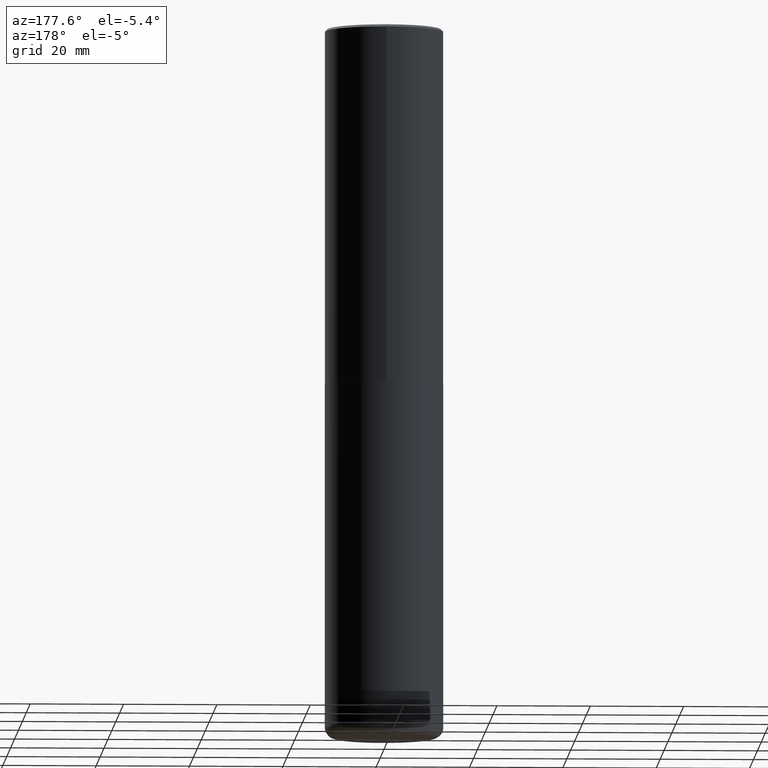
[diagram: clean part render]
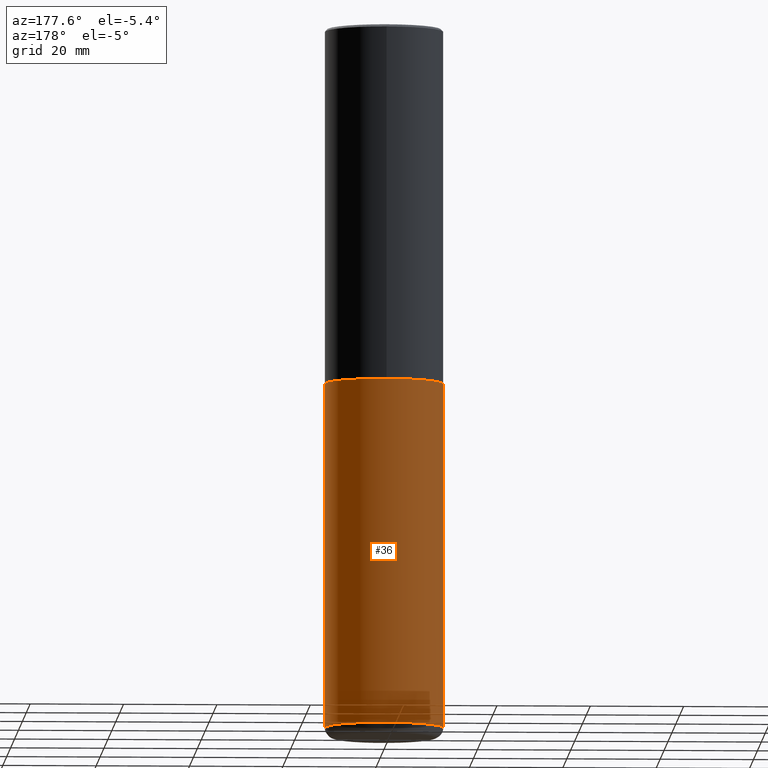
[diagram: same view with one face highlighted and labeled with its STEP entity id]
A machine part, auxiliary view. The second image highlights one B-rep face of the part: STEP entity #36.
In plain terms, the highlighted cylindrical surface (partial cylindrical patch) has radius 12.7 mm, axis along (-0, 0, 1).
Its self-contained STEP definition (entity closure, byte-faithful):
#17 = EDGE_LOOP ( 'NONE', ( #33, #362, #44, #53 ) ) ;
#19 = DIRECTION ( 'NONE',  ( -2.445468806185136597E-29, 3.491481338843145583E-15, 1.000000000000000000 ) ) ;
#21 = DIRECTION ( 'NONE',  ( -2.445468806185136597E-29, 3.491481338843145583E-15, 1.000000000000000000 ) ) ;
#33 = ORIENTED_EDGE ( 'NONE', *, *, #271, .T. ) ;
#34 = DIRECTION ( 'NONE',  ( -2.445468806185136877E-29, 3.491481338843145188E-15, 1.000000000000000000 ) ) ;
#36 = ADVANCED_FACE ( 'NONE', ( #171 ), #379, .T. ) ;
#43 = VECTOR ( 'NONE', #404, 39.37007874015748143 ) ;
#44 = ORIENTED_EDGE ( 'NONE', *, *, #332, .F. ) ;
#53 = ORIENTED_EDGE ( 'NONE', *, *, #386, .F. ) ;
#56 = DIRECTION ( 'NONE',  ( 1.000000000000000000, -6.982962677686262766E-15, 0.000000000000000000 ) ) ;
#66 = VERTEX_POINT ( 'NONE', #88 ) ;
#69 = VERTEX_POINT ( 'NONE', #335 ) ;
#88 = CARTESIAN_POINT ( 'NONE',  ( -0.5000000000000001110, -1.708194103376248851E-14, -5.910000000000000142 ) ) ;
#92 = DIRECTION ( 'NONE',  ( 1.000000000000000000, -6.982962677686266711E-15, 4.876176775795935793E-29 ) ) ;
#103 = VERTEX_POINT ( 'NONE', #152 ) ;
#106 = CARTESIAN_POINT ( 'NONE',  ( 1.445272064455415567E-28, -2.063465471256298944E-14, -5.910000000000000142 ) ) ;
#108 = CARTESIAN_POINT ( 'NONE',  ( -0.5000000000000000000, -1.200183568574571118E-14, -3.000000000000000444 ) ) ;
#152 = CARTESIAN_POINT ( 'NONE',  ( 0.5000000000000000000, -1.396592535537257129E-14, -3.000000000000000444 ) ) ;
#159 = DIRECTION ( 'NONE',  ( 1.000000000000000000, -6.982962677686266711E-15, 0.000000000000000000 ) ) ;
#168 = CARTESIAN_POINT ( 'NONE',  ( 7.336406418555409790E-29, -1.047444401652943635E-14, -3.000000000000000444 ) ) ;
#171 = FACE_OUTER_BOUND ( 'NONE', #17, .T. ) ;
#195 = DIRECTION ( 'NONE',  ( -2.445468806185136597E-29, 3.491481338843145583E-15, 1.000000000000000000 ) ) ;
#208 = CARTESIAN_POINT ( 'NONE',  ( 0.5000000000000000000, -3.491481338843133355E-15, 2.438088387897967896E-29 ) ) ;
#215 = AXIS2_PLACEMENT_3D ( 'NONE', #168, #195, #159 ) ;
#232 = CARTESIAN_POINT ( 'NONE',  ( -0.5000000000000000000, 3.552713678800500929E-15, -2.459467545127452891E-29 ) ) ;
#244 = AXIS2_PLACEMENT_3D ( 'NONE', #405, #21, #92 ) ;
#271 = EDGE_CURVE ( 'NONE', #69, #66, #396, .T. ) ;
#275 = LINE ( 'NONE', #208, #300 ) ;
#297 = EDGE_CURVE ( 'NONE', #66, #345, #378, .T. ) ;
#300 = VECTOR ( 'NONE', #34, 39.37007874015748143 ) ;
#332 = EDGE_CURVE ( 'NONE', #103, #345, #346, .T. ) ;
#335 = CARTESIAN_POINT ( 'NONE',  ( 0.5000000000000001110, -2.412613605140612280E-14, -5.910000000000000142 ) ) ;
#345 = VERTEX_POINT ( 'NONE', #108 ) ;
#346 = CIRCLE ( 'NONE', #215, 0.5000000000000000000 ) ;
#362 = ORIENTED_EDGE ( 'NONE', *, *, #297, .T. ) ;
#378 = LINE ( 'NONE', #232, #43 ) ;
#379 = CYLINDRICAL_SURFACE ( 'NONE', #244, 0.5000000000000000000 ) ;
#386 = EDGE_CURVE ( 'NONE', #69, #103, #275, .T. ) ;
#396 = CIRCLE ( 'NONE', #415, 0.5000000000000000000 ) ;
#404 = DIRECTION ( 'NONE',  ( -2.445468806185136877E-29, 3.491481338843145188E-15, 1.000000000000000000 ) ) ;
#405 = CARTESIAN_POINT ( 'NONE',  ( 0.000000000000000000, 0.000000000000000000, 0.000000000000000000 ) ) ;
#415 = AXIS2_PLACEMENT_3D ( 'NONE', #106, #19, #56 ) ;